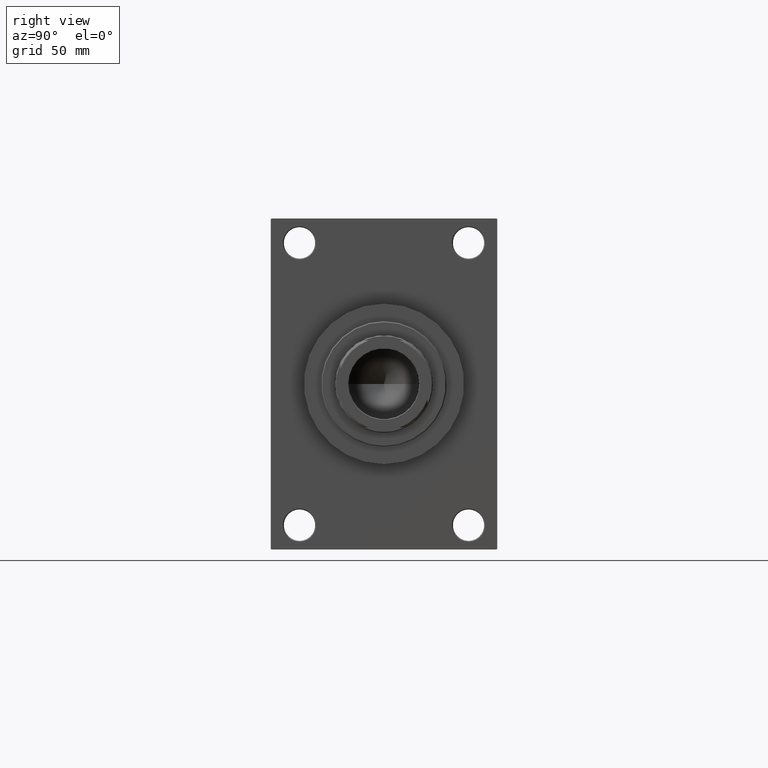
[diagram: clean part render]
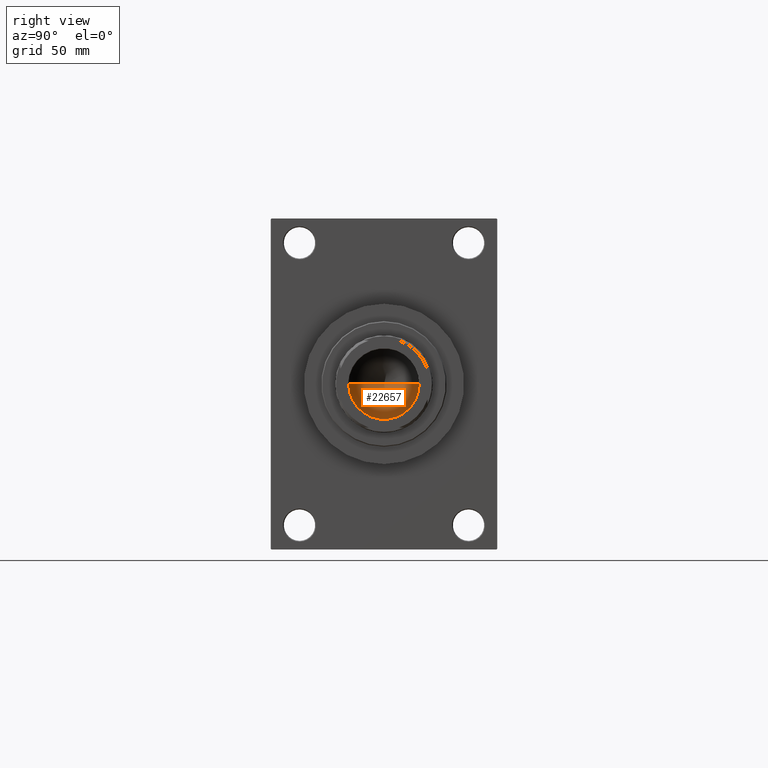
[diagram: same view with one face highlighted and labeled with its STEP entity id]
A machine part, right view. The second image highlights one B-rep face of the part: STEP entity #22657.
In plain terms, the highlighted conical surface has half-angle 59 deg.
Its self-contained STEP definition (entity closure, byte-faithful):
#450 = EDGE_CURVE ( 'NONE', #38678, #19187, #38023, .T. ) ;
#691 = LINE ( 'NONE', #40769, #20752 ) ;
#1782 = AXIS2_PLACEMENT_3D ( 'NONE', #22462, #37462, #34080 ) ;
#6169 = CARTESIAN_POINT ( 'NONE',  ( -1.584115414415908206E-14, 0.000000000000000000, 212.8325724646919070 ) ) ;
#6283 = EDGE_CURVE ( 'NONE', #15490, #38678, #39491, .T. ) ;
#9779 = CARTESIAN_POINT ( 'NONE',  ( 20.24999999999998934, 0.000000000000000000, 225.0000000000000284 ) ) ;
#10267 = DIRECTION ( 'NONE',  ( 0.8571673007021112234, 0.000000000000000000, 0.5150380749100560429 ) ) ;
#10271 = CONICAL_SURFACE ( 'NONE', #26431, 20.24999999999998934, 1.029744258676652313 ) ;
#15490 = VERTEX_POINT ( 'NONE', #6169 ) ;
#18891 = VECTOR ( 'NONE', #10267, 1000.000000000000000 ) ;
#19187 = VERTEX_POINT ( 'NONE', #21757 ) ;
#20622 = DIRECTION ( 'NONE',  ( -0.000000000000000000, -0.000000000000000000, 1.000000000000000000 ) ) ;
#20651 = EDGE_LOOP ( 'NONE', ( #35978, #29061, #28080 ) ) ;
#20752 = VECTOR ( 'NONE', #22162, 1000.000000000000000 ) ;
#21757 = CARTESIAN_POINT ( 'NONE',  ( -20.24999999999998934, 2.479909768273389117E-15, 225.0000000000000284 ) ) ;
#22162 = DIRECTION ( 'NONE',  ( -0.8571673007021112234, 1.049727191138617340E-16, 0.5150380749100560429 ) ) ;
#22462 = CARTESIAN_POINT ( 'NONE',  ( 0.000000000000000000, 0.000000000000000000, 225.0000000000000284 ) ) ;
#22657 = ADVANCED_FACE ( 'NONE', ( #32230 ), #10271, .F. ) ;
#26431 = AXIS2_PLACEMENT_3D ( 'NONE', #46474, #20622, #36087 ) ;
#28080 = ORIENTED_EDGE ( 'NONE', *, *, #450, .T. ) ;
#29061 = ORIENTED_EDGE ( 'NONE', *, *, #6283, .T. ) ;
#32230 = FACE_OUTER_BOUND ( 'NONE', #20651, .T. ) ;
#34080 = DIRECTION ( 'NONE',  ( 1.000000000000000000, 0.000000000000000000, 0.000000000000000000 ) ) ;
#35642 = CARTESIAN_POINT ( 'NONE',  ( 20.24999999999998934, 0.000000000000000000, 225.0000000000000284 ) ) ;
#35978 = ORIENTED_EDGE ( 'NONE', *, *, #41725, .F. ) ;
#36087 = DIRECTION ( 'NONE',  ( 1.000000000000000000, 0.000000000000000000, 0.000000000000000000 ) ) ;
#37462 = DIRECTION ( 'NONE',  ( -0.000000000000000000, -0.000000000000000000, 1.000000000000000000 ) ) ;
#38023 = CIRCLE ( 'NONE', #1782, 20.24999999999998934 ) ;
#38678 = VERTEX_POINT ( 'NONE', #9779 ) ;
#39491 = LINE ( 'NONE', #35642, #18891 ) ;
#40769 = CARTESIAN_POINT ( 'NONE',  ( -20.24999999999998934, 2.479909768273389117E-15, 225.0000000000000284 ) ) ;
#41725 = EDGE_CURVE ( 'NONE', #15490, #19187, #691, .T. ) ;
#46474 = CARTESIAN_POINT ( 'NONE',  ( 0.000000000000000000, 0.000000000000000000, 225.0000000000000284 ) ) ;